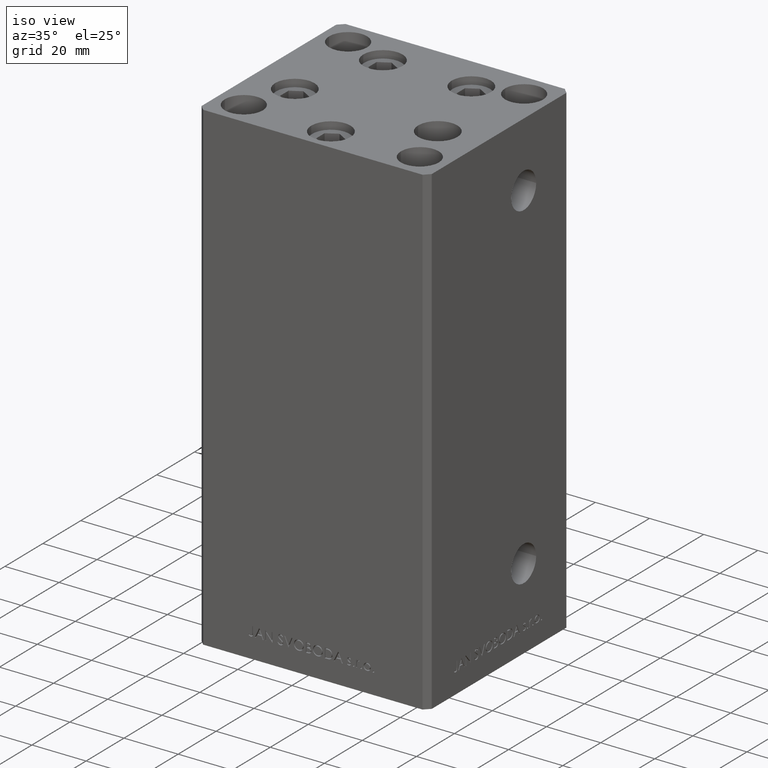
[diagram: clean part render]
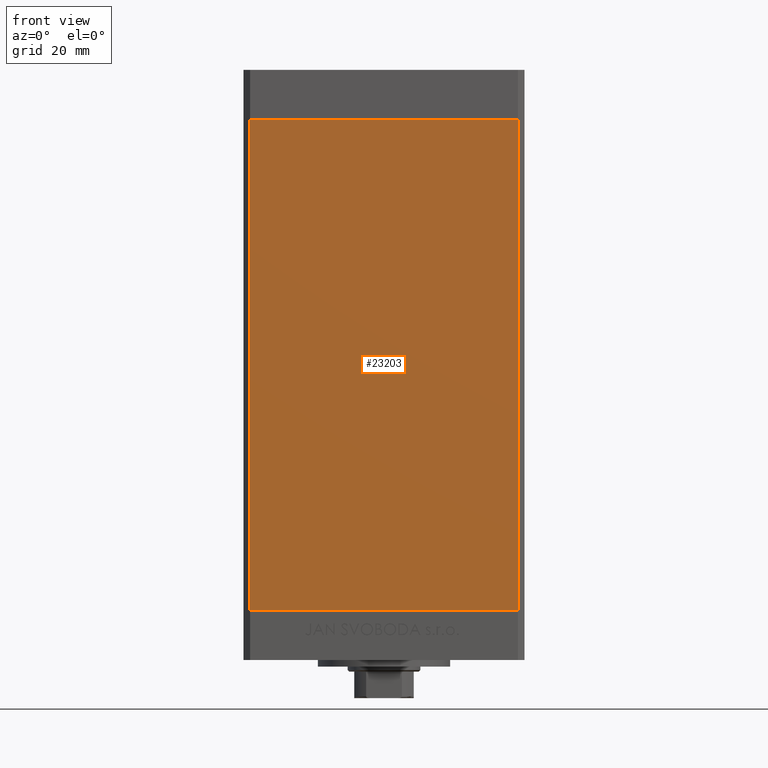
[diagram: tour spotlight — one face highlighted and labeled with its STEP entity id]
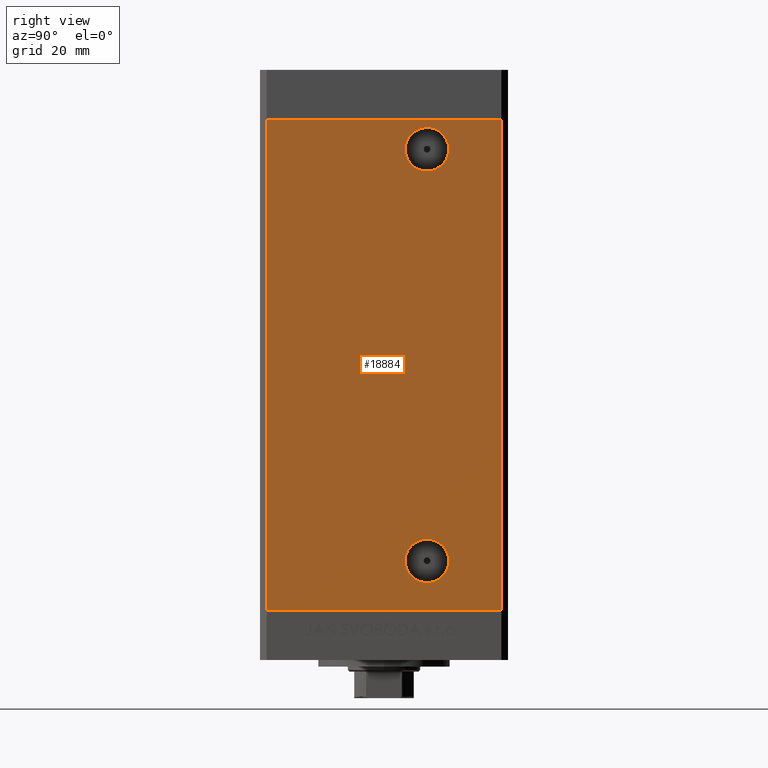
[diagram: tour spotlight — one face highlighted and labeled with its STEP entity id]
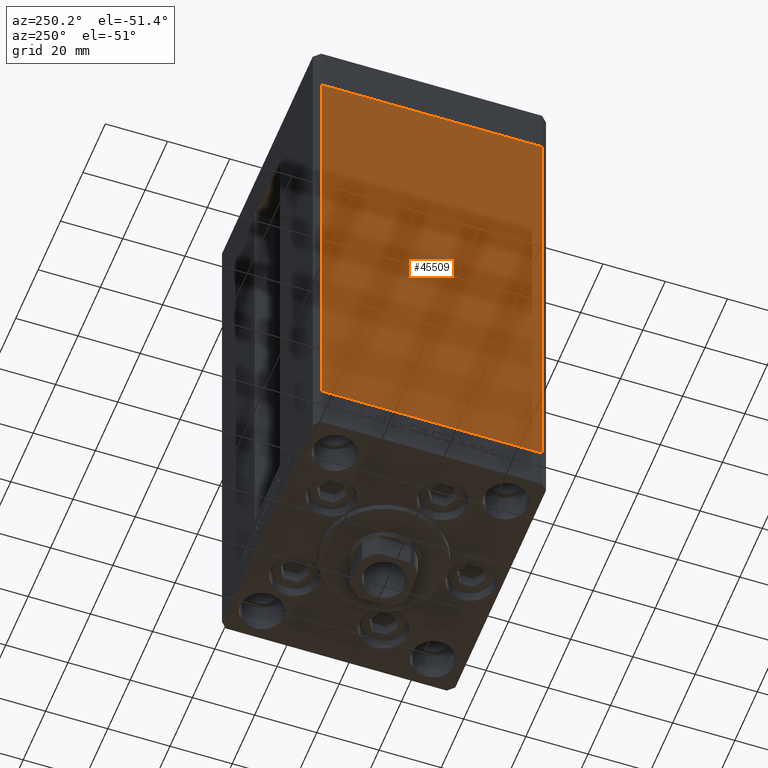
[diagram: tour spotlight — one face highlighted and labeled with its STEP entity id]
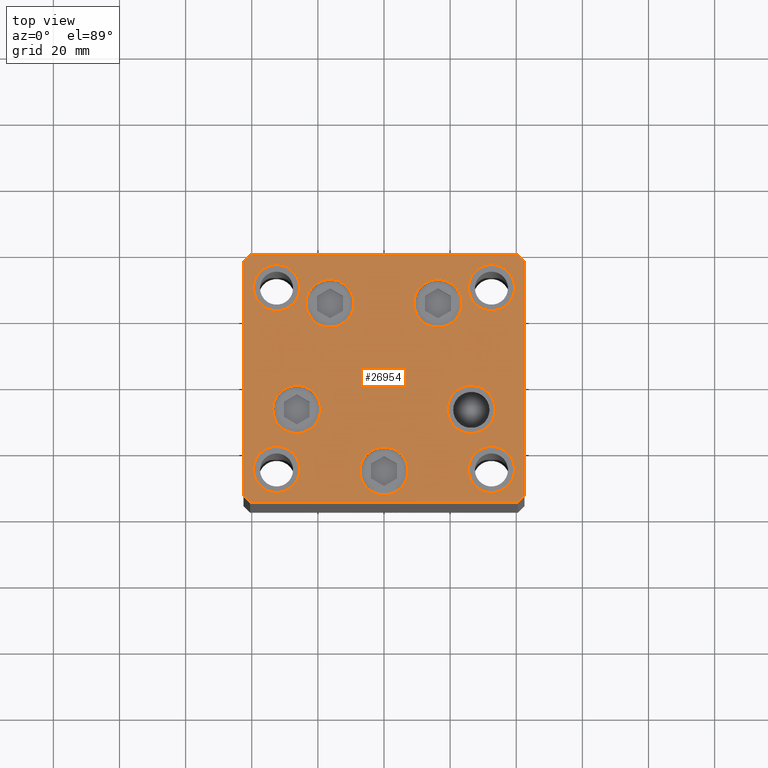
[diagram: tour spotlight — one face highlighted and labeled with its STEP entity id]
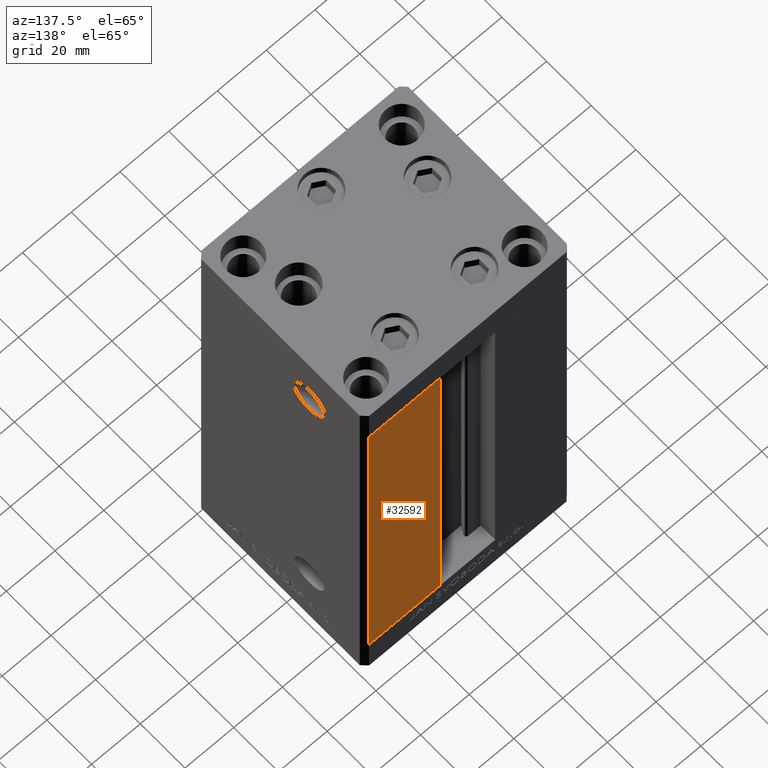
[diagram: tour spotlight — one face highlighted and labeled with its STEP entity id]
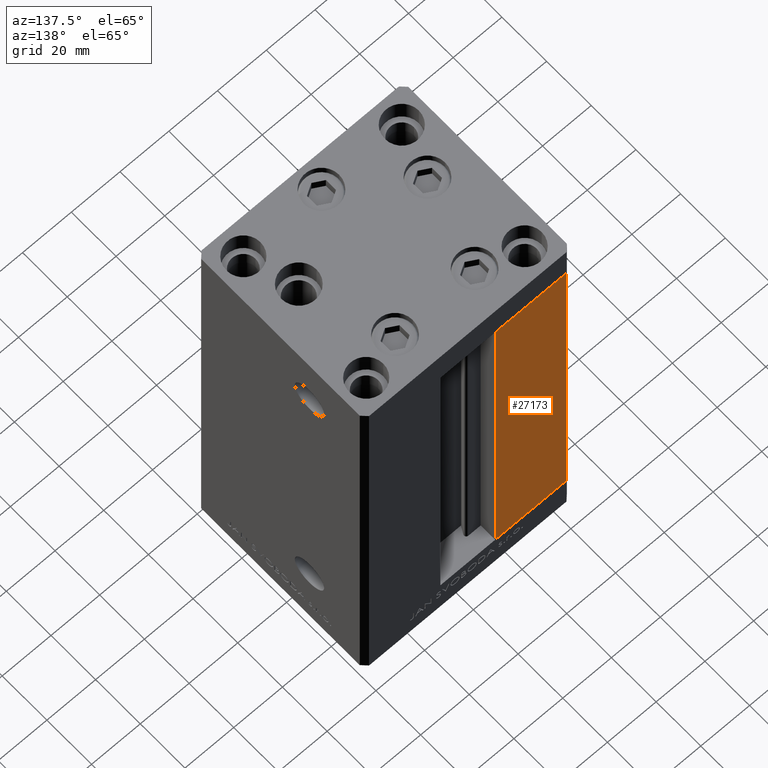
[diagram: tour spotlight — one face highlighted and labeled with its STEP entity id]
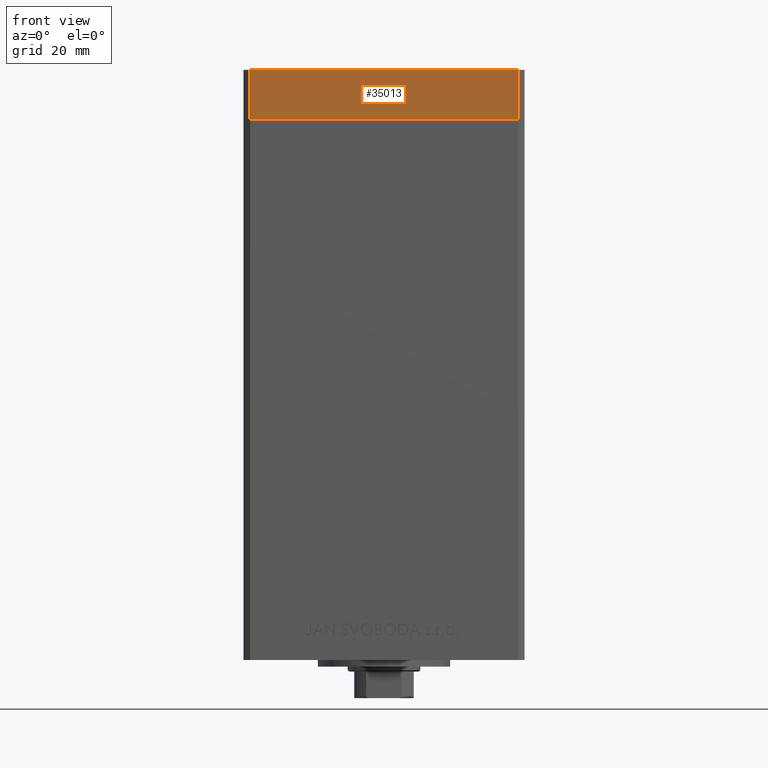
[diagram: tour spotlight — one face highlighted and labeled with its STEP entity id]
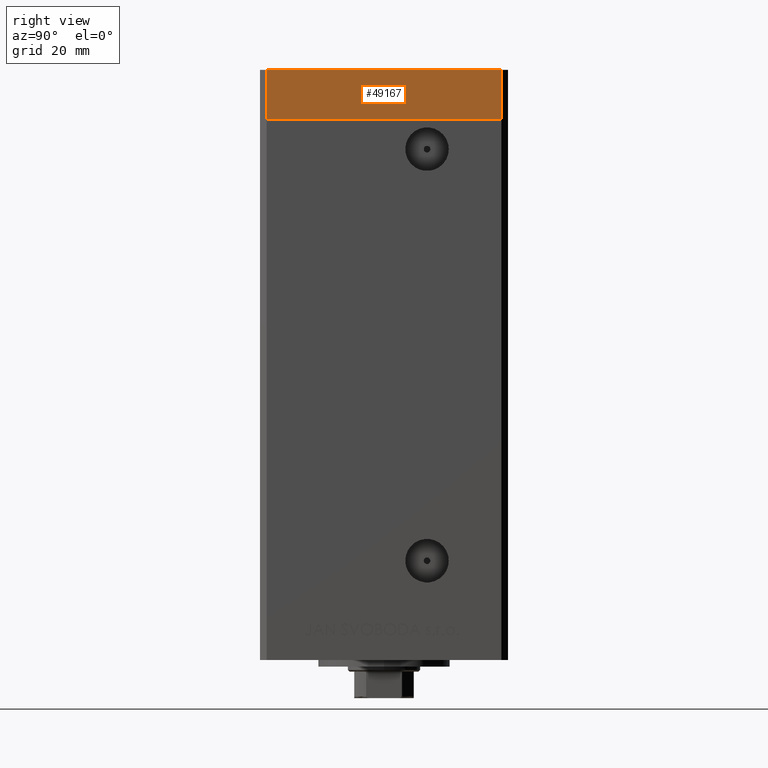
[diagram: tour spotlight — one face highlighted and labeled with its STEP entity id]
A machine part: a face-by-face anatomy tour. The part has 1171 B-rep faces; the first image is the clean iso view, then the 8 largest visible faces are spotlighted one at a time (largest first), each with its STEP entity span.

Face 1 — front view, entity #23203. In plain terms, the highlighted planar face has unit normal (0, 1, 0).
Definition (entity closure, byte-faithful):
#2121 = CARTESIAN_POINT ( 'NONE',  ( -40.49999999999998579, -37.50000000000000711, 0.000000000000000000 ) ) ;
#5513 = EDGE_CURVE ( 'NONE', #39610, #30235, #44500, .T. ) ;
#5662 = CARTESIAN_POINT ( 'NONE',  ( 40.49999999999998579, -37.50000000000000711, 148.5000000000000000 ) ) ;
#6049 = FACE_OUTER_BOUND ( 'NONE', #33575, .T. ) ;
#6086 = DIRECTION ( 'NONE',  ( 1.000000000000000000, 0.000000000000000000, 0.000000000000000000 ) ) ;
#7280 = CARTESIAN_POINT ( 'NONE',  ( -40.49999999999998579, -37.50000000000000711, 148.5000000000000000 ) ) ;
#9648 = DIRECTION ( 'NONE',  ( -0.000000000000000000, -0.000000000000000000, -1.000000000000000000 ) ) ;
#10099 = VECTOR ( 'NONE', #6086, 1000.000000000000000 ) ;
#11022 = LINE ( 'NONE', #7280, #34894 ) ;
#11401 = CARTESIAN_POINT ( 'NONE',  ( -40.49999999999998579, -37.50000000000000711, 148.5000000000000000 ) ) ;
#11536 = CARTESIAN_POINT ( 'NONE',  ( -40.49999999999998579, -37.50000000000000711, 148.5000000000000000 ) ) ;
#11631 = EDGE_CURVE ( 'NONE', #24986, #25413, #40046, .T. ) ;
#12812 = CARTESIAN_POINT ( 'NONE',  ( -40.49999999999998579, -37.50000000000000711, 0.000000000000000000 ) ) ;
#18714 = EDGE_CURVE ( 'NONE', #30235, #25413, #46932, .T. ) ;
#19259 = DIRECTION ( 'NONE',  ( -0.000000000000000000, -0.000000000000000000, -1.000000000000000000 ) ) ;
#20290 = VECTOR ( 'NONE', #9648, 1000.000000000000000 ) ;
#20597 = AXIS2_PLACEMENT_3D ( 'NONE', #47878, #21978, #25476 ) ;
#21978 = DIRECTION ( 'NONE',  ( 0.000000000000000000, 1.000000000000000000, 0.000000000000000000 ) ) ;
#23203 = ADVANCED_FACE ( 'NONE', ( #6049 ), #32459, .F. ) ;
#24986 = VERTEX_POINT ( 'NONE', #40977 ) ;
#25413 = VERTEX_POINT ( 'NONE', #40796 ) ;
#25476 = DIRECTION ( 'NONE',  ( 0.000000000000000000, -0.000000000000000000, 1.000000000000000000 ) ) ;
#26750 = EDGE_CURVE ( 'NONE', #39610, #24986, #11022, .T. ) ;
#29471 = DIRECTION ( 'NONE',  ( 1.000000000000000000, 0.000000000000000000, 0.000000000000000000 ) ) ;
#30235 = VERTEX_POINT ( 'NONE', #2121 ) ;
#32459 = PLANE ( 'NONE',  #20597 ) ;
#33575 = EDGE_LOOP ( 'NONE', ( #42021, #34798, #45183, #41530 ) ) ;
#34798 = ORIENTED_EDGE ( 'NONE', *, *, #11631, .F. ) ;
#34894 = VECTOR ( 'NONE', #29471, 1000.000000000000000 ) ;
#39610 = VERTEX_POINT ( 'NONE', #11401 ) ;
#40046 = LINE ( 'NONE', #5662, #20290 ) ;
#40796 = CARTESIAN_POINT ( 'NONE',  ( 40.49999999999998579, -37.50000000000000711, 0.000000000000000000 ) ) ;
#40977 = CARTESIAN_POINT ( 'NONE',  ( 40.49999999999998579, -37.50000000000000711, 148.5000000000000000 ) ) ;
#41530 = ORIENTED_EDGE ( 'NONE', *, *, #5513, .T. ) ;
#42021 = ORIENTED_EDGE ( 'NONE', *, *, #18714, .T. ) ;
#42426 = VECTOR ( 'NONE', #19259, 1000.000000000000000 ) ;
#44500 = LINE ( 'NONE', #11536, #42426 ) ;
#45183 = ORIENTED_EDGE ( 'NONE', *, *, #26750, .F. ) ;
#46932 = LINE ( 'NONE', #12812, #10099 ) ;
#47878 = CARTESIAN_POINT ( 'NONE',  ( -40.49999999999998579, -37.50000000000000711, 148.5000000000000000 ) ) ;

Face 2 — right view, entity #18884. In plain terms, the highlighted planar face has unit normal (1, -0, 0).
Definition (entity closure, byte-faithful):
#4 = CIRCLE ( 'NONE', #46949, 6.580000000000008065 ) ;
#3818 = EDGE_LOOP ( 'NONE', ( #45643, #15372 ) ) ;
#4358 = LINE ( 'NONE', #30765, #15298 ) ;
#4603 = LINE ( 'NONE', #16568, #42106 ) ;
#5933 = DIRECTION ( 'NONE',  ( -2.931927001650941360E-16, -1.000000000000000000, 0.000000000000000000 ) ) ;
#6117 = AXIS2_PLACEMENT_3D ( 'NONE', #15995, #12001, #23728 ) ;
#6176 = LINE ( 'NONE', #33070, #27689 ) ;
#6728 = CARTESIAN_POINT ( 'NONE',  ( 42.49999999999998579, -35.50000000000000711, 148.5000000000000000 ) ) ;
#9004 = CARTESIAN_POINT ( 'NONE',  ( 42.49999999999999289, 13.00000000000000000, 14.99999999999998579 ) ) ;
#9439 = EDGE_CURVE ( 'NONE', #11125, #24076, #46431, .T. ) ;
#9589 = CARTESIAN_POINT ( 'NONE',  ( 42.50000000000000711, 35.50000000000001421, 0.000000000000000000 ) ) ;
#11125 = VERTEX_POINT ( 'NONE', #19431 ) ;
#11884 = VERTEX_POINT ( 'NONE', #9589 ) ;
#12001 = DIRECTION ( 'NONE',  ( 1.000000000000000000, -2.931927001650941360E-16, 0.000000000000000000 ) ) ;
#12491 = VERTEX_POINT ( 'NONE', #28833 ) ;
#12742 = EDGE_CURVE ( 'NONE', #20650, #26974, #44176, .T. ) ;
#14153 = ORIENTED_EDGE ( 'NONE', *, *, #24643, .F. ) ;
#14732 = VERTEX_POINT ( 'NONE', #29198 ) ;
#15298 = VECTOR ( 'NONE', #19810, 1000.000000000000000 ) ;
#15372 = ORIENTED_EDGE ( 'NONE', *, *, #30175, .F. ) ;
#15995 = CARTESIAN_POINT ( 'NONE',  ( 42.50000000000000711, 35.50000000000001421, 148.5000000000000000 ) ) ;
#16568 = CARTESIAN_POINT ( 'NONE',  ( 42.50000000000000711, 35.50000000000001421, 148.5000000000000000 ) ) ;
#18884 = ADVANCED_FACE ( 'NONE', ( #42647, #30693, #38172 ), #45636, .T. ) ;
#19431 = CARTESIAN_POINT ( 'NONE',  ( 42.49999999999999289, 19.58000000000000540, 14.99999999999998579 ) ) ;
#19807 = DIRECTION ( 'NONE',  ( -2.931927001650941360E-16, -1.000000000000000000, 0.000000000000000000 ) ) ;
#19810 = DIRECTION ( 'NONE',  ( -0.000000000000000000, -0.000000000000000000, -1.000000000000000000 ) ) ;
#20650 = VERTEX_POINT ( 'NONE', #37463 ) ;
#21692 = DIRECTION ( 'NONE',  ( 0.000000000000000000, 1.000000000000000000, 0.000000000000000000 ) ) ;
#23123 = EDGE_LOOP ( 'NONE', ( #14153, #25851, #30000, #30575 ) ) ;
#23728 = DIRECTION ( 'NONE',  ( 2.931927001650941360E-16, 1.000000000000000000, 0.000000000000000000 ) ) ;
#24076 = VERTEX_POINT ( 'NONE', #36918 ) ;
#24214 = DIRECTION ( 'NONE',  ( 1.000000000000000000, -2.275047181608927644E-16, 0.000000000000000000 ) ) ;
#24643 = EDGE_CURVE ( 'NONE', #11884, #14732, #6176, .T. ) ;
#24891 = VECTOR ( 'NONE', #36876, 1000.000000000000000 ) ;
#25588 = EDGE_CURVE ( 'NONE', #26974, #20650, #29325, .T. ) ;
#25851 = ORIENTED_EDGE ( 'NONE', *, *, #39928, .F. ) ;
#25996 = CARTESIAN_POINT ( 'NONE',  ( 42.49999999999999289, 13.00000000000000000, 139.4999999999999716 ) ) ;
#26974 = VERTEX_POINT ( 'NONE', #42025 ) ;
#27689 = VECTOR ( 'NONE', #5933, 1000.000000000000000 ) ;
#28402 = EDGE_CURVE ( 'NONE', #40264, #12491, #4603, .T. ) ;
#28768 = CARTESIAN_POINT ( 'NONE',  ( 42.49999999999999289, 13.00000000000000000, 14.99999999999998579 ) ) ;
#28833 = CARTESIAN_POINT ( 'NONE',  ( 42.49999999999998579, -35.50000000000000711, 148.5000000000000000 ) ) ;
#29198 = CARTESIAN_POINT ( 'NONE',  ( 42.49999999999998579, -35.50000000000000711, 0.000000000000000000 ) ) ;
#29325 = CIRCLE ( 'NONE', #42834, 6.580000000000014282 ) ;
#30000 = ORIENTED_EDGE ( 'NONE', *, *, #28402, .T. ) ;
#30175 = EDGE_CURVE ( 'NONE', #24076, #11125, #4, .T. ) ;
#30575 = ORIENTED_EDGE ( 'NONE', *, *, #36663, .T. ) ;
#30693 = FACE_BOUND ( 'NONE', #47052, .T. ) ;
#30765 = CARTESIAN_POINT ( 'NONE',  ( 42.50000000000000711, 35.50000000000001421, 148.5000000000000000 ) ) ;
#31334 = AXIS2_PLACEMENT_3D ( 'NONE', #9004, #24214, #21692 ) ;
#32003 = DIRECTION ( 'NONE',  ( 0.000000000000000000, 1.000000000000000000, 0.000000000000000000 ) ) ;
#32234 = AXIS2_PLACEMENT_3D ( 'NONE', #25996, #37931, #44905 ) ;
#33070 = CARTESIAN_POINT ( 'NONE',  ( 42.50000000000000711, 35.50000000000001421, 0.000000000000000000 ) ) ;
#34282 = DIRECTION ( 'NONE',  ( 1.000000000000000000, -2.275047181608927644E-16, 0.000000000000000000 ) ) ;
#36663 = EDGE_CURVE ( 'NONE', #12491, #14732, #45558, .T. ) ;
#36876 = DIRECTION ( 'NONE',  ( -0.000000000000000000, -0.000000000000000000, -1.000000000000000000 ) ) ;
#36918 = CARTESIAN_POINT ( 'NONE',  ( 42.49999999999999289, 6.419999999999993712, 14.99999999999998579 ) ) ;
#37323 = ORIENTED_EDGE ( 'NONE', *, *, #12742, .F. ) ;
#37463 = CARTESIAN_POINT ( 'NONE',  ( 42.49999999999999289, 6.419999999999983942, 139.4999999999999716 ) ) ;
#37544 = CARTESIAN_POINT ( 'NONE',  ( 42.49999999999999289, 13.00000000000000000, 139.4999999999999716 ) ) ;
#37931 = DIRECTION ( 'NONE',  ( 1.000000000000000000, -2.275047181608927644E-16, 0.000000000000000000 ) ) ;
#38172 = FACE_OUTER_BOUND ( 'NONE', #23123, .T. ) ;
#39928 = EDGE_CURVE ( 'NONE', #40264, #11884, #4358, .T. ) ;
#40264 = VERTEX_POINT ( 'NONE', #44669 ) ;
#42025 = CARTESIAN_POINT ( 'NONE',  ( 42.49999999999999289, 19.58000000000001251, 139.4999999999999716 ) ) ;
#42106 = VECTOR ( 'NONE', #19807, 1000.000000000000000 ) ;
#42647 = FACE_BOUND ( 'NONE', #3818, .T. ) ;
#42834 = AXIS2_PLACEMENT_3D ( 'NONE', #37544, #34282, #45494 ) ;
#44176 = CIRCLE ( 'NONE', #32234, 6.580000000000014282 ) ;
#44669 = CARTESIAN_POINT ( 'NONE',  ( 42.50000000000000711, 35.50000000000001421, 148.5000000000000000 ) ) ;
#44905 = DIRECTION ( 'NONE',  ( 0.000000000000000000, 1.000000000000000000, 0.000000000000000000 ) ) ;
#45031 = ORIENTED_EDGE ( 'NONE', *, *, #25588, .F. ) ;
#45494 = DIRECTION ( 'NONE',  ( 0.000000000000000000, 1.000000000000000000, 0.000000000000000000 ) ) ;
#45558 = LINE ( 'NONE', #6728, #24891 ) ;
#45636 = PLANE ( 'NONE',  #6117 ) ;
#45643 = ORIENTED_EDGE ( 'NONE', *, *, #9439, .F. ) ;
#46431 = CIRCLE ( 'NONE', #31334, 6.580000000000008065 ) ;
#46949 = AXIS2_PLACEMENT_3D ( 'NONE', #28768, #47928, #32003 ) ;
#47052 = EDGE_LOOP ( 'NONE', ( #45031, #37323 ) ) ;
#47928 = DIRECTION ( 'NONE',  ( 1.000000000000000000, -2.275047181608927644E-16, 0.000000000000000000 ) ) ;

Face 3 — auxiliary view, entity #45509. In plain terms, the highlighted planar face has unit normal (1, 0, 0).
Definition (entity closure, byte-faithful):
#7989 = PLANE ( 'NONE',  #20990 ) ;
#8237 = DIRECTION ( 'NONE',  ( 1.000000000000000000, 2.931927001650941360E-16, -0.000000000000000000 ) ) ;
#8667 = VECTOR ( 'NONE', #20943, 1000.000000000000000 ) ;
#8822 = LINE ( 'NONE', #24774, #38577 ) ;
#10164 = VERTEX_POINT ( 'NONE', #21167 ) ;
#11235 = CARTESIAN_POINT ( 'NONE',  ( -42.49999999999998579, -35.50000000000000711, 148.5000000000000000 ) ) ;
#11482 = DIRECTION ( 'NONE',  ( -0.000000000000000000, -0.000000000000000000, -1.000000000000000000 ) ) ;
#13760 = LINE ( 'NONE', #44620, #30941 ) ;
#17142 = CARTESIAN_POINT ( 'NONE',  ( -42.50000000000000711, 35.50000000000001421, 148.5000000000000000 ) ) ;
#17886 = ORIENTED_EDGE ( 'NONE', *, *, #32888, .F. ) ;
#18738 = LINE ( 'NONE', #11235, #24783 ) ;
#20943 = DIRECTION ( 'NONE',  ( -0.000000000000000000, -0.000000000000000000, -1.000000000000000000 ) ) ;
#20990 = AXIS2_PLACEMENT_3D ( 'NONE', #34652, #8237, #38638 ) ;
#21167 = CARTESIAN_POINT ( 'NONE',  ( -42.50000000000000711, 35.50000000000001421, 0.000000000000000000 ) ) ;
#21919 = CARTESIAN_POINT ( 'NONE',  ( -42.49999999999998579, -35.50000000000000711, 148.5000000000000000 ) ) ;
#23253 = ORIENTED_EDGE ( 'NONE', *, *, #24170, .T. ) ;
#23758 = VERTEX_POINT ( 'NONE', #32999 ) ;
#23973 = ORIENTED_EDGE ( 'NONE', *, *, #24009, .F. ) ;
#24009 = EDGE_CURVE ( 'NONE', #34837, #24346, #13760, .T. ) ;
#24170 = EDGE_CURVE ( 'NONE', #34837, #10164, #31397, .T. ) ;
#24346 = VERTEX_POINT ( 'NONE', #21919 ) ;
#24774 = CARTESIAN_POINT ( 'NONE',  ( -42.50000000000000711, 35.50000000000001421, 0.000000000000000000 ) ) ;
#24783 = VECTOR ( 'NONE', #11482, 1000.000000000000000 ) ;
#25964 = DIRECTION ( 'NONE',  ( 2.931927001650941360E-16, -1.000000000000000000, 0.000000000000000000 ) ) ;
#26221 = ORIENTED_EDGE ( 'NONE', *, *, #47509, .T. ) ;
#27671 = CARTESIAN_POINT ( 'NONE',  ( -42.50000000000000711, 35.50000000000001421, 148.5000000000000000 ) ) ;
#30941 = VECTOR ( 'NONE', #25964, 1000.000000000000000 ) ;
#31397 = LINE ( 'NONE', #27671, #8667 ) ;
#32888 = EDGE_CURVE ( 'NONE', #24346, #23758, #18738, .T. ) ;
#32999 = CARTESIAN_POINT ( 'NONE',  ( -42.49999999999998579, -35.50000000000000711, 0.000000000000000000 ) ) ;
#34652 = CARTESIAN_POINT ( 'NONE',  ( -42.50000000000000711, 35.50000000000001421, 148.5000000000000000 ) ) ;
#34837 = VERTEX_POINT ( 'NONE', #17142 ) ;
#38577 = VECTOR ( 'NONE', #39958, 1000.000000000000000 ) ;
#38638 = DIRECTION ( 'NONE',  ( -2.931927001650941360E-16, 1.000000000000000000, 0.000000000000000000 ) ) ;
#39160 = EDGE_LOOP ( 'NONE', ( #26221, #17886, #23973, #23253 ) ) ;
#39958 = DIRECTION ( 'NONE',  ( 2.931927001650941360E-16, -1.000000000000000000, 0.000000000000000000 ) ) ;
#42116 = FACE_OUTER_BOUND ( 'NONE', #39160, .T. ) ;
#44620 = CARTESIAN_POINT ( 'NONE',  ( -42.50000000000000711, 35.50000000000001421, 148.5000000000000000 ) ) ;
#45509 = ADVANCED_FACE ( 'NONE', ( #42116 ), #7989, .F. ) ;
#47509 = EDGE_CURVE ( 'NONE', #10164, #23758, #8822, .T. ) ;

Face 4 — top view, entity #26954. In plain terms, the highlighted planar face has unit normal (0, 0, 1).
Definition (entity closure, byte-faithful):
#751 = EDGE_CURVE ( 'NONE', #39592, #11985, #37827, .T. ) ;
#823 = CARTESIAN_POINT ( 'NONE',  ( -33.64865316429776954, -9.333333333333337478, 0.000000000000000000 ) ) ;
#832 = DIRECTION ( 'NONE',  ( 0.000000000000000000, -0.000000000000000000, -1.000000000000000000 ) ) ;
#996 = EDGE_CURVE ( 'NONE', #38332, #22882, #35816, .T. ) ;
#1214 = DIRECTION ( 'NONE',  ( 0.000000000000000000, 0.000000000000000000, 1.000000000000000000 ) ) ;
#1339 = DIRECTION ( 'NONE',  ( 1.000000000000000000, 0.000000000000000000, 0.000000000000000000 ) ) ;
#1417 = AXIS2_PLACEMENT_3D ( 'NONE', #25407, #25897, #41323 ) ;
#1518 = AXIS2_PLACEMENT_3D ( 'NONE', #11389, #26836, #10903 ) ;
#1844 = EDGE_LOOP ( 'NONE', ( #23767, #6208 ) ) ;
#2169 = DIRECTION ( 'NONE',  ( 0.000000000000000000, 0.000000000000000000, 1.000000000000000000 ) ) ;
#2222 = DIRECTION ( 'NONE',  ( 0.000000000000000000, 0.000000000000000000, 1.000000000000000000 ) ) ;
#2289 = CARTESIAN_POINT ( 'NONE',  ( 40.49999999999991473, 37.50000000000000711, 0.000000000000000000 ) ) ;
#2456 = ORIENTED_EDGE ( 'NONE', *, *, #39711, .F. ) ;
#2947 = FACE_BOUND ( 'NONE', #3565, .T. ) ;
#3004 = CARTESIAN_POINT ( 'NONE',  ( -40.50000000000000711, 37.49999999999997868, 0.000000000000000000 ) ) ;
#3115 = AXIS2_PLACEMENT_3D ( 'NONE', #5895, #36296, #40753 ) ;
#3144 = CARTESIAN_POINT ( 'NONE',  ( -25.50000000000000355, 27.50000000000000355, 0.000000000000000000 ) ) ;
#3189 = VERTEX_POINT ( 'NONE', #42095 ) ;
#3428 = FACE_BOUND ( 'NONE', #26576, .T. ) ;
#3565 = EDGE_LOOP ( 'NONE', ( #8751, #9553 ) ) ;
#3736 = VERTEX_POINT ( 'NONE', #22509 ) ;
#3845 = ORIENTED_EDGE ( 'NONE', *, *, #751, .T. ) ;
#4274 = DIRECTION ( 'NONE',  ( 0.000000000000000000, 0.000000000000000000, 1.000000000000000000 ) ) ;
#4553 = CARTESIAN_POINT ( 'NONE',  ( -32.50000000000000000, 27.50000000000000355, 0.000000000000000000 ) ) ;
#5895 = CARTESIAN_POINT ( 'NONE',  ( -26.39865316429776954, -9.333333333333337478, 0.000000000000000000 ) ) ;
#6186 = AXIS2_PLACEMENT_3D ( 'NONE', #12254, #4274, #27458 ) ;
#6208 = ORIENTED_EDGE ( 'NONE', *, *, #14030, .T. ) ;
#6273 = ORIENTED_EDGE ( 'NONE', *, *, #36153, .T. ) ;
#6283 = CIRCLE ( 'NONE', #3115, 7.249999999999999112 ) ;
#6542 = CARTESIAN_POINT ( 'NONE',  ( -23.57291334290543006, 22.74999999999999645, 0.000000000000000000 ) ) ;
#6551 = CIRCLE ( 'NONE', #32802, 6.999999999999999112 ) ;
#6618 = CARTESIAN_POINT ( 'NONE',  ( -39.50000000000000000, 27.50000000000000355, 0.000000000000000000 ) ) ;
#6785 = CARTESIAN_POINT ( 'NONE',  ( 19.14865316429777309, -9.333333333333330373, 0.000000000000000000 ) ) ;
#6828 = CARTESIAN_POINT ( 'NONE',  ( 40.50000000000000000, -37.50000000000000711, 0.000000000000000000 ) ) ;
#7400 = AXIS2_PLACEMENT_3D ( 'NONE', #17868, #29329, #33069 ) ;
#7951 = CARTESIAN_POINT ( 'NONE',  ( 25.50000000000000355, 27.49999999999999645, 0.000000000000000000 ) ) ;
#8304 = EDGE_CURVE ( 'NONE', #9121, #3736, #26210, .T. ) ;
#8410 = EDGE_CURVE ( 'NONE', #11366, #34229, #12313, .T. ) ;
#8557 = CIRCLE ( 'NONE', #1417, 7.249999999999999112 ) ;
#8682 = DIRECTION ( 'NONE',  ( 1.000000000000000000, 0.000000000000000000, 0.000000000000000000 ) ) ;
#8751 = ORIENTED_EDGE ( 'NONE', *, *, #36229, .T. ) ;
#9121 = VERTEX_POINT ( 'NONE', #37674 ) ;
#9249 = ORIENTED_EDGE ( 'NONE', *, *, #10739, .T. ) ;
#9318 = AXIS2_PLACEMENT_3D ( 'NONE', #38063, #40826, #17905 ) ;
#9376 = CARTESIAN_POINT ( 'NONE',  ( 42.50000000000000711, -35.50000000000000000, 0.000000000000000000 ) ) ;
#9494 = DIRECTION ( 'NONE',  ( 0.000000000000000000, -0.000000000000000000, -1.000000000000000000 ) ) ;
#9553 = ORIENTED_EDGE ( 'NONE', *, *, #17030, .T. ) ;
#9558 = EDGE_CURVE ( 'NONE', #31681, #34976, #48040, .T. ) ;
#10739 = EDGE_CURVE ( 'NONE', #3189, #20175, #14654, .T. ) ;
#10903 = DIRECTION ( 'NONE',  ( 1.000000000000000000, 0.000000000000000000, 0.000000000000000000 ) ) ;
#11366 = VERTEX_POINT ( 'NONE', #14405 ) ;
#11389 = CARTESIAN_POINT ( 'NONE',  ( 0.000000000000000000, 0.000000000000000000, 0.000000000000000000 ) ) ;
#11638 = FACE_BOUND ( 'NONE', #26444, .T. ) ;
#11666 = VERTEX_POINT ( 'NONE', #3144 ) ;
#11985 = VERTEX_POINT ( 'NONE', #6828 ) ;
#12127 = EDGE_CURVE ( 'NONE', #22882, #47693, #49136, .T. ) ;
#12210 = CARTESIAN_POINT ( 'NONE',  ( -26.39865316429776954, -9.333333333333337478, 0.000000000000000000 ) ) ;
#12254 = CARTESIAN_POINT ( 'NONE',  ( 32.50000000000000000, 27.49999999999999645, 0.000000000000000000 ) ) ;
#12313 = CIRCLE ( 'NONE', #43366, 7.249999999999999112 ) ;
#12911 = CARTESIAN_POINT ( 'NONE',  ( -32.50000000000000000, -27.49999999999999645, 0.000000000000000000 ) ) ;
#12962 = VERTEX_POINT ( 'NONE', #17236 ) ;
#12966 = DIRECTION ( 'NONE',  ( 0.000000000000000000, -0.000000000000000000, -1.000000000000000000 ) ) ;
#13103 = VECTOR ( 'NONE', #29984, 1000.000000000000000 ) ;
#13141 = CIRCLE ( 'NONE', #18727, 6.999999999999999112 ) ;
#13261 = EDGE_CURVE ( 'NONE', #37925, #11666, #13141, .T. ) ;
#13339 = CARTESIAN_POINT ( 'NONE',  ( 32.50000000000000000, 27.49999999999999645, 0.000000000000000000 ) ) ;
#13730 = DIRECTION ( 'NONE',  ( 0.000000000000000000, 0.000000000000000000, 1.000000000000000000 ) ) ;
#13750 = ORIENTED_EDGE ( 'NONE', *, *, #13261, .F. ) ;
#14030 = EDGE_CURVE ( 'NONE', #34229, #11366, #16467, .T. ) ;
#14154 = EDGE_CURVE ( 'NONE', #20175, #3189, #37155, .T. ) ;
#14169 = ORIENTED_EDGE ( 'NONE', *, *, #27301, .T. ) ;
#14243 = CIRCLE ( 'NONE', #36522, 7.249999999999999112 ) ;
#14405 = CARTESIAN_POINT ( 'NONE',  ( 9.072913342905424727, 22.75000000000000000, 0.000000000000000000 ) ) ;
#14593 = CARTESIAN_POINT ( 'NONE',  ( 3.429011037612589276E-15, -28.00000000000000000, 0.000000000000000000 ) ) ;
#14654 = CIRCLE ( 'NONE', #18644, 7.250000000000000000 ) ;
#15039 = DIRECTION ( 'NONE',  ( 0.000000000000000000, 0.000000000000000000, 1.000000000000000000 ) ) ;
#15132 = FACE_BOUND ( 'NONE', #38240, .T. ) ;
#15331 = CIRCLE ( 'NONE', #28862, 6.999999999999999112 ) ;
#15843 = CIRCLE ( 'NONE', #22988, 6.999999999999999112 ) ;
#15953 = EDGE_CURVE ( 'NONE', #26290, #9121, #27570, .T. ) ;
#16290 = CARTESIAN_POINT ( 'NONE',  ( -16.32291334290543006, 22.74999999999999645, 0.000000000000000000 ) ) ;
#16411 = ORIENTED_EDGE ( 'NONE', *, *, #34445, .F. ) ;
#16467 = CIRCLE ( 'NONE', #17251, 7.249999999999999112 ) ;
#16945 = CIRCLE ( 'NONE', #7400, 7.249999999999999112 ) ;
#16949 = AXIS2_PLACEMENT_3D ( 'NONE', #32169, #13730, #44113 ) ;
#16954 = DIRECTION ( 'NONE',  ( 1.000000000000000000, 0.000000000000000000, 0.000000000000000000 ) ) ;
#17030 = EDGE_CURVE ( 'NONE', #12962, #45228, #20387, .T. ) ;
#17236 = CARTESIAN_POINT ( 'NONE',  ( -9.072913342905431833, 22.74999999999999645, 0.000000000000000000 ) ) ;
#17251 = AXIS2_PLACEMENT_3D ( 'NONE', #31634, #38357, #39112 ) ;
#17522 = EDGE_CURVE ( 'NONE', #3736, #38332, #36415, .T. ) ;
#17752 = CIRCLE ( 'NONE', #16949, 6.999999999999999112 ) ;
#17789 = AXIS2_PLACEMENT_3D ( 'NONE', #31616, #2222, #46800 ) ;
#17853 = CARTESIAN_POINT ( 'NONE',  ( -40.50000000000000711, 37.49999999999997868, 0.000000000000000000 ) ) ;
#17868 = CARTESIAN_POINT ( 'NONE',  ( 26.39865316429776954, -9.333333333333330373, 0.000000000000000000 ) ) ;
#17905 = DIRECTION ( 'NONE',  ( 1.000000000000000000, 0.000000000000000000, 0.000000000000000000 ) ) ;
#18600 = CARTESIAN_POINT ( 'NONE',  ( -39.50000000000000000, -27.49999999999999645, 0.000000000000000000 ) ) ;
#18644 = AXIS2_PLACEMENT_3D ( 'NONE', #14593, #25822, #29789 ) ;
#18727 = AXIS2_PLACEMENT_3D ( 'NONE', #22075, #2169, #37026 ) ;
#18897 = DIRECTION ( 'NONE',  ( 1.000000000000000000, 1.713307136767217096E-16, 0.000000000000000000 ) ) ;
#19214 = ORIENTED_EDGE ( 'NONE', *, *, #37318, .F. ) ;
#19625 = AXIS2_PLACEMENT_3D ( 'NONE', #21882, #48506, #30316 ) ;
#19969 = VERTEX_POINT ( 'NONE', #29677 ) ;
#20175 = VERTEX_POINT ( 'NONE', #47075 ) ;
#20245 = EDGE_CURVE ( 'NONE', #27541, #44583, #8557, .T. ) ;
#20387 = CIRCLE ( 'NONE', #19625, 7.249999999999999112 ) ;
#20830 = ORIENTED_EDGE ( 'NONE', *, *, #23821, .F. ) ;
#21031 = EDGE_CURVE ( 'NONE', #47575, #36856, #48339, .T. ) ;
#21785 = EDGE_LOOP ( 'NONE', ( #24667, #14169 ) ) ;
#21882 = CARTESIAN_POINT ( 'NONE',  ( -16.32291334290543006, 22.74999999999999645, 0.000000000000000000 ) ) ;
#22075 = CARTESIAN_POINT ( 'NONE',  ( -32.50000000000000000, 27.50000000000000355, 0.000000000000000000 ) ) ;
#22509 = CARTESIAN_POINT ( 'NONE',  ( 40.49999999999991473, 37.50000000000000711, 0.000000000000000000 ) ) ;
#22779 = DIRECTION ( 'NONE',  ( 0.7071067811865474617, 0.7071067811865474617, 0.000000000000000000 ) ) ;
#22882 = VERTEX_POINT ( 'NONE', #24562 ) ;
#22988 = AXIS2_PLACEMENT_3D ( 'NONE', #4553, #15039, #34948 ) ;
#23543 = ORIENTED_EDGE ( 'NONE', *, *, #15953, .T. ) ;
#23767 = ORIENTED_EDGE ( 'NONE', *, *, #8410, .T. ) ;
#23821 = EDGE_CURVE ( 'NONE', #11666, #37925, #15843, .T. ) ;
#23891 = EDGE_LOOP ( 'NONE', ( #38558, #27571 ) ) ;
#24230 = EDGE_CURVE ( 'NONE', #35539, #19969, #14243, .T. ) ;
#24314 = DIRECTION ( 'NONE',  ( 0.000000000000000000, 0.000000000000000000, 1.000000000000000000 ) ) ;
#24397 = CARTESIAN_POINT ( 'NONE',  ( 39.50000000000000000, -27.49999999999999645, 0.000000000000000000 ) ) ;
#24516 = EDGE_CURVE ( 'NONE', #47693, #39592, #27861, .T. ) ;
#24561 = DIRECTION ( 'NONE',  ( 1.000000000000000000, 0.000000000000000000, 0.000000000000000000 ) ) ;
#24562 = CARTESIAN_POINT ( 'NONE',  ( -42.50000000000000711, 35.49999999999997158, 0.000000000000000000 ) ) ;
#24590 = DIRECTION ( 'NONE',  ( -1.172770800660376741E-15, 1.000000000000000000, 0.000000000000000000 ) ) ;
#24667 = ORIENTED_EDGE ( 'NONE', *, *, #24230, .T. ) ;
#24823 = AXIS2_PLACEMENT_3D ( 'NONE', #13339, #24314, #24561 ) ;
#24834 = CARTESIAN_POINT ( 'NONE',  ( 42.50000000000000711, -35.50000000000000000, 0.000000000000000000 ) ) ;
#24860 = ORIENTED_EDGE ( 'NONE', *, *, #21031, .F. ) ;
#25359 = VERTEX_POINT ( 'NONE', #24397 ) ;
#25407 = CARTESIAN_POINT ( 'NONE',  ( 26.39865316429776954, -9.333333333333330373, 0.000000000000000000 ) ) ;
#25822 = DIRECTION ( 'NONE',  ( 0.000000000000000000, -0.000000000000000000, -1.000000000000000000 ) ) ;
#25874 = FACE_BOUND ( 'NONE', #1844, .T. ) ;
#25897 = DIRECTION ( 'NONE',  ( 0.000000000000000000, -0.000000000000000000, -1.000000000000000000 ) ) ;
#26114 = FACE_BOUND ( 'NONE', #33748, .T. ) ;
#26210 = LINE ( 'NONE', #41399, #29810 ) ;
#26290 = VERTEX_POINT ( 'NONE', #24834 ) ;
#26444 = EDGE_LOOP ( 'NONE', ( #39012, #33016 ) ) ;
#26512 = LINE ( 'NONE', #41701, #28036 ) ;
#26576 = EDGE_LOOP ( 'NONE', ( #2456, #19214 ) ) ;
#26732 = CARTESIAN_POINT ( 'NONE',  ( -42.50000000000000711, 35.49999999999997158, 0.000000000000000000 ) ) ;
#26836 = DIRECTION ( 'NONE',  ( -0.000000000000000000, 0.000000000000000000, 1.000000000000000000 ) ) ;
#26850 = CARTESIAN_POINT ( 'NONE',  ( -40.49999999999999289, -37.50000000000002132, 0.000000000000000000 ) ) ;
#26954 = ADVANCED_FACE ( 'NONE', ( #2947, #25874, #32370, #47550, #34062, #3428, #11638, #26114, #15132, #30813 ), #34555, .T. ) ;
#27301 = EDGE_CURVE ( 'NONE', #19969, #35539, #6283, .T. ) ;
#27458 = DIRECTION ( 'NONE',  ( 1.000000000000000000, 0.000000000000000000, 0.000000000000000000 ) ) ;
#27541 = VERTEX_POINT ( 'NONE', #44185 ) ;
#27570 = LINE ( 'NONE', #9376, #39479 ) ;
#27571 = ORIENTED_EDGE ( 'NONE', *, *, #20245, .T. ) ;
#27858 = ORIENTED_EDGE ( 'NONE', *, *, #996, .T. ) ;
#27861 = LINE ( 'NONE', #42556, #49141 ) ;
#28036 = VECTOR ( 'NONE', #22779, 1000.000000000000114 ) ;
#28387 = CARTESIAN_POINT ( 'NONE',  ( -42.50000000000000000, -35.50000000000000711, 0.000000000000000000 ) ) ;
#28689 = DIRECTION ( 'NONE',  ( -1.000000000000000000, -3.426614273534436165E-16, 0.000000000000000000 ) ) ;
#28797 = CIRCLE ( 'NONE', #24823, 6.999999999999999112 ) ;
#28852 = ORIENTED_EDGE ( 'NONE', *, *, #24516, .T. ) ;
#28862 = AXIS2_PLACEMENT_3D ( 'NONE', #12911, #1214, #8682 ) ;
#29329 = DIRECTION ( 'NONE',  ( 0.000000000000000000, -0.000000000000000000, -1.000000000000000000 ) ) ;
#29603 = CARTESIAN_POINT ( 'NONE',  ( -40.49999999999999289, -37.50000000000002132, 0.000000000000000000 ) ) ;
#29677 = CARTESIAN_POINT ( 'NONE',  ( -19.14865316429777309, -9.333333333333335702, 0.000000000000000000 ) ) ;
#29789 = DIRECTION ( 'NONE',  ( 1.000000000000000000, 0.000000000000000000, 0.000000000000000000 ) ) ;
#29810 = VECTOR ( 'NONE', #40666, 1000.000000000000114 ) ;
#29984 = DIRECTION ( 'NONE',  ( 9.773090005503140331E-17, -1.000000000000000000, 0.000000000000000000 ) ) ;
#30316 = DIRECTION ( 'NONE',  ( 1.000000000000000000, 0.000000000000000000, 0.000000000000000000 ) ) ;
#30742 = VECTOR ( 'NONE', #28689, 1000.000000000000000 ) ;
#30813 = FACE_OUTER_BOUND ( 'NONE', #39902, .T. ) ;
#31616 = CARTESIAN_POINT ( 'NONE',  ( -32.50000000000000000, -27.49999999999999645, 0.000000000000000000 ) ) ;
#31634 = CARTESIAN_POINT ( 'NONE',  ( 16.32291334290542295, 22.75000000000000000, 0.000000000000000000 ) ) ;
#31681 = VERTEX_POINT ( 'NONE', #34813 ) ;
#31842 = DIRECTION ( 'NONE',  ( 0.7071067811865463515, -0.7071067811865487940, 0.000000000000000000 ) ) ;
#32103 = CARTESIAN_POINT ( 'NONE',  ( 23.57291334290542295, 22.75000000000000000, 0.000000000000000000 ) ) ;
#32169 = CARTESIAN_POINT ( 'NONE',  ( 32.50000000000000000, -27.49999999999999645, 0.000000000000000000 ) ) ;
#32370 = FACE_BOUND ( 'NONE', #23891, .T. ) ;
#32802 = AXIS2_PLACEMENT_3D ( 'NONE', #34818, #35568, #46509 ) ;
#33016 = ORIENTED_EDGE ( 'NONE', *, *, #40634, .F. ) ;
#33069 = DIRECTION ( 'NONE',  ( 1.000000000000000000, 0.000000000000000000, 0.000000000000000000 ) ) ;
#33748 = EDGE_LOOP ( 'NONE', ( #20830, #13750 ) ) ;
#34062 = FACE_BOUND ( 'NONE', #21785, .T. ) ;
#34229 = VERTEX_POINT ( 'NONE', #32103 ) ;
#34347 = CARTESIAN_POINT ( 'NONE',  ( 39.50000000000000000, 27.49999999999999645, 0.000000000000000000 ) ) ;
#34445 = EDGE_CURVE ( 'NONE', #36856, #47575, #28797, .T. ) ;
#34555 = PLANE ( 'NONE',  #1518 ) ;
#34813 = CARTESIAN_POINT ( 'NONE',  ( -25.50000000000000355, -27.49999999999999645, 0.000000000000000000 ) ) ;
#34818 = CARTESIAN_POINT ( 'NONE',  ( 32.50000000000000000, -27.49999999999999645, 0.000000000000000000 ) ) ;
#34884 = ORIENTED_EDGE ( 'NONE', *, *, #17522, .T. ) ;
#34948 = DIRECTION ( 'NONE',  ( 1.000000000000000000, 0.000000000000000000, 0.000000000000000000 ) ) ;
#34976 = VERTEX_POINT ( 'NONE', #18600 ) ;
#35539 = VERTEX_POINT ( 'NONE', #823 ) ;
#35568 = DIRECTION ( 'NONE',  ( 0.000000000000000000, 0.000000000000000000, 1.000000000000000000 ) ) ;
#35816 = LINE ( 'NONE', #17853, #41513 ) ;
#36149 = CARTESIAN_POINT ( 'NONE',  ( 16.32291334290542295, 22.75000000000000000, 0.000000000000000000 ) ) ;
#36153 = EDGE_CURVE ( 'NONE', #11985, #26290, #26512, .T. ) ;
#36229 = EDGE_CURVE ( 'NONE', #45228, #12962, #43968, .T. ) ;
#36296 = DIRECTION ( 'NONE',  ( 0.000000000000000000, -0.000000000000000000, -1.000000000000000000 ) ) ;
#36415 = LINE ( 'NONE', #2289, #30742 ) ;
#36522 = AXIS2_PLACEMENT_3D ( 'NONE', #12210, #12966, #16954 ) ;
#36856 = VERTEX_POINT ( 'NONE', #34347 ) ;
#37026 = DIRECTION ( 'NONE',  ( 1.000000000000000000, 0.000000000000000000, 0.000000000000000000 ) ) ;
#37155 = CIRCLE ( 'NONE', #9318, 7.250000000000000000 ) ;
#37318 = EDGE_CURVE ( 'NONE', #43649, #25359, #17752, .T. ) ;
#37674 = CARTESIAN_POINT ( 'NONE',  ( 42.49999999999992895, 35.50000000000000000, 0.000000000000000000 ) ) ;
#37827 = LINE ( 'NONE', #26850, #39927 ) ;
#37925 = VERTEX_POINT ( 'NONE', #6618 ) ;
#38063 = CARTESIAN_POINT ( 'NONE',  ( 3.429011037612589276E-15, -28.00000000000000000, 0.000000000000000000 ) ) ;
#38240 = EDGE_LOOP ( 'NONE', ( #16411, #24860 ) ) ;
#38332 = VERTEX_POINT ( 'NONE', #3004 ) ;
#38357 = DIRECTION ( 'NONE',  ( 0.000000000000000000, -0.000000000000000000, -1.000000000000000000 ) ) ;
#38558 = ORIENTED_EDGE ( 'NONE', *, *, #40715, .T. ) ;
#38781 = ORIENTED_EDGE ( 'NONE', *, *, #8304, .T. ) ;
#39012 = ORIENTED_EDGE ( 'NONE', *, *, #9558, .F. ) ;
#39112 = DIRECTION ( 'NONE',  ( 1.000000000000000000, 0.000000000000000000, 0.000000000000000000 ) ) ;
#39479 = VECTOR ( 'NONE', #24590, 1000.000000000000000 ) ;
#39592 = VERTEX_POINT ( 'NONE', #29603 ) ;
#39711 = EDGE_CURVE ( 'NONE', #25359, #43649, #6551, .T. ) ;
#39881 = DIRECTION ( 'NONE',  ( 1.000000000000000000, 0.000000000000000000, 0.000000000000000000 ) ) ;
#39902 = EDGE_LOOP ( 'NONE', ( #28852, #3845, #6273, #23543, #38781, #34884, #27858, #45353 ) ) ;
#39927 = VECTOR ( 'NONE', #18897, 1000.000000000000000 ) ;
#40634 = EDGE_CURVE ( 'NONE', #34976, #31681, #15331, .T. ) ;
#40666 = DIRECTION ( 'NONE',  ( -0.7071067811865474617, 0.7071067811865474617, 0.000000000000000000 ) ) ;
#40715 = EDGE_CURVE ( 'NONE', #44583, #27541, #16945, .T. ) ;
#40753 = DIRECTION ( 'NONE',  ( 1.000000000000000000, 0.000000000000000000, 0.000000000000000000 ) ) ;
#40826 = DIRECTION ( 'NONE',  ( 0.000000000000000000, -0.000000000000000000, -1.000000000000000000 ) ) ;
#41323 = DIRECTION ( 'NONE',  ( 1.000000000000000000, 0.000000000000000000, 0.000000000000000000 ) ) ;
#41399 = CARTESIAN_POINT ( 'NONE',  ( 42.49999999999992895, 35.50000000000000000, 0.000000000000000000 ) ) ;
#41513 = VECTOR ( 'NONE', #44261, 1000.000000000000000 ) ;
#41701 = CARTESIAN_POINT ( 'NONE',  ( 40.50000000000000000, -37.50000000000000711, 0.000000000000000000 ) ) ;
#42095 = CARTESIAN_POINT ( 'NONE',  ( 7.250000000000003553, -28.00000000000000000, 0.000000000000000000 ) ) ;
#42345 = AXIS2_PLACEMENT_3D ( 'NONE', #16290, #832, #1339 ) ;
#42556 = CARTESIAN_POINT ( 'NONE',  ( -42.50000000000000000, -35.50000000000000711, 0.000000000000000000 ) ) ;
#43366 = AXIS2_PLACEMENT_3D ( 'NONE', #36149, #9494, #39881 ) ;
#43649 = VERTEX_POINT ( 'NONE', #47145 ) ;
#43968 = CIRCLE ( 'NONE', #42345, 7.249999999999999112 ) ;
#44113 = DIRECTION ( 'NONE',  ( 1.000000000000000000, 0.000000000000000000, 0.000000000000000000 ) ) ;
#44185 = CARTESIAN_POINT ( 'NONE',  ( 33.64865316429776954, -9.333333333333328596, 0.000000000000000000 ) ) ;
#44261 = DIRECTION ( 'NONE',  ( -0.7071067811865463515, -0.7071067811865487940, 0.000000000000000000 ) ) ;
#44583 = VERTEX_POINT ( 'NONE', #6785 ) ;
#44828 = ORIENTED_EDGE ( 'NONE', *, *, #14154, .T. ) ;
#45228 = VERTEX_POINT ( 'NONE', #6542 ) ;
#45353 = ORIENTED_EDGE ( 'NONE', *, *, #12127, .T. ) ;
#46509 = DIRECTION ( 'NONE',  ( 1.000000000000000000, 0.000000000000000000, 0.000000000000000000 ) ) ;
#46800 = DIRECTION ( 'NONE',  ( 1.000000000000000000, 0.000000000000000000, 0.000000000000000000 ) ) ;
#47075 = CARTESIAN_POINT ( 'NONE',  ( -7.249999999999997335, -28.00000000000000000, 0.000000000000000000 ) ) ;
#47145 = CARTESIAN_POINT ( 'NONE',  ( 25.50000000000000355, -27.49999999999999645, 0.000000000000000000 ) ) ;
#47550 = FACE_BOUND ( 'NONE', #47558, .T. ) ;
#47558 = EDGE_LOOP ( 'NONE', ( #44828, #9249 ) ) ;
#47575 = VERTEX_POINT ( 'NONE', #7951 ) ;
#47693 = VERTEX_POINT ( 'NONE', #28387 ) ;
#48040 = CIRCLE ( 'NONE', #17789, 6.999999999999999112 ) ;
#48339 = CIRCLE ( 'NONE', #6186, 6.999999999999999112 ) ;
#48506 = DIRECTION ( 'NONE',  ( 0.000000000000000000, -0.000000000000000000, -1.000000000000000000 ) ) ;
#49136 = LINE ( 'NONE', #26732, #13103 ) ;
#49141 = VECTOR ( 'NONE', #31842, 1000.000000000000000 ) ;

Face 5 — auxiliary view, entity #32592. In plain terms, the highlighted planar face has unit normal (-0, -1, 0).
Definition (entity closure, byte-faithful):
#960 = VERTEX_POINT ( 'NONE', #36788 ) ;
#2967 = CARTESIAN_POINT ( 'NONE',  ( -11.25000000000000000, 37.50000000000000000, 148.5000000000000000 ) ) ;
#3833 = DIRECTION ( 'NONE',  ( -2.372271420139223331E-16, -1.000000000000000000, 0.000000000000000000 ) ) ;
#7599 = VECTOR ( 'NONE', #26855, 1000.000000000000000 ) ;
#8330 = VECTOR ( 'NONE', #36340, 1000.000000000000000 ) ;
#8866 = EDGE_CURVE ( 'NONE', #26832, #960, #21149, .T. ) ;
#10387 = EDGE_CURVE ( 'NONE', #27715, #26832, #44309, .T. ) ;
#11062 = PLANE ( 'NONE',  #34281 ) ;
#11816 = LINE ( 'NONE', #15568, #17807 ) ;
#13441 = EDGE_LOOP ( 'NONE', ( #25204, #30717, #30221, #24153 ) ) ;
#15098 = EDGE_CURVE ( 'NONE', #24772, #27715, #37099, .T. ) ;
#15568 = CARTESIAN_POINT ( 'NONE',  ( 11.25000000000000000, 37.50000000000000000, 0.000000000000000000 ) ) ;
#16426 = CARTESIAN_POINT ( 'NONE',  ( -11.25000000000000000, 37.50000000000000000, 0.000000000000000000 ) ) ;
#16593 = CARTESIAN_POINT ( 'NONE',  ( 11.24999999999999289, 37.50000000000000000, 148.5000000000000000 ) ) ;
#17807 = VECTOR ( 'NONE', #30507, 1000.000000000000000 ) ;
#21149 = LINE ( 'NONE', #16426, #8330 ) ;
#24153 = ORIENTED_EDGE ( 'NONE', *, *, #10387, .T. ) ;
#24772 = VERTEX_POINT ( 'NONE', #16593 ) ;
#25204 = ORIENTED_EDGE ( 'NONE', *, *, #8866, .T. ) ;
#26232 = CARTESIAN_POINT ( 'NONE',  ( 40.50000000000000000, 37.50000000000000711, 148.5000000000000000 ) ) ;
#26753 = DIRECTION ( 'NONE',  ( 1.000000000000000000, -2.372271420139223331E-16, 0.000000000000000000 ) ) ;
#26832 = VERTEX_POINT ( 'NONE', #47056 ) ;
#26855 = DIRECTION ( 'NONE',  ( 1.000000000000000000, 0.000000000000000000, 0.000000000000000000 ) ) ;
#27388 = VECTOR ( 'NONE', #41305, 1000.000000000000000 ) ;
#27715 = VERTEX_POINT ( 'NONE', #26232 ) ;
#29597 = CARTESIAN_POINT ( 'NONE',  ( 40.50000000000000000, 37.50000000000000711, 148.5000000000000000 ) ) ;
#30221 = ORIENTED_EDGE ( 'NONE', *, *, #15098, .T. ) ;
#30507 = DIRECTION ( 'NONE',  ( -0.000000000000000000, -0.000000000000000000, 1.000000000000000000 ) ) ;
#30717 = ORIENTED_EDGE ( 'NONE', *, *, #48179, .T. ) ;
#32592 = ADVANCED_FACE ( 'NONE', ( #42178 ), #11062, .F. ) ;
#34281 = AXIS2_PLACEMENT_3D ( 'NONE', #37971, #3833, #26753 ) ;
#36340 = DIRECTION ( 'NONE',  ( -1.000000000000000000, 2.372271420139223331E-16, 0.000000000000000000 ) ) ;
#36788 = CARTESIAN_POINT ( 'NONE',  ( 11.25000000000000000, 37.50000000000000000, 0.000000000000000000 ) ) ;
#37099 = LINE ( 'NONE', #2967, #7599 ) ;
#37971 = CARTESIAN_POINT ( 'NONE',  ( -11.25000000000000000, 37.50000000000000000, 148.5000000000000000 ) ) ;
#41305 = DIRECTION ( 'NONE',  ( -0.000000000000000000, -0.000000000000000000, -1.000000000000000000 ) ) ;
#42178 = FACE_OUTER_BOUND ( 'NONE', #13441, .T. ) ;
#44309 = LINE ( 'NONE', #29597, #27388 ) ;
#47056 = CARTESIAN_POINT ( 'NONE',  ( 40.50000000000000000, 37.50000000000000711, 0.000000000000000000 ) ) ;
#48179 = EDGE_CURVE ( 'NONE', #960, #24772, #11816, .T. ) ;

Face 6 — auxiliary view, entity #27173. In plain terms, the highlighted planar face has unit normal (-0, -1, 0).
Definition (entity closure, byte-faithful):
#6231 = CARTESIAN_POINT ( 'NONE',  ( -11.25000000000000000, 37.50000000000000000, 0.000000000000000000 ) ) ;
#7399 = DIRECTION ( 'NONE',  ( 1.000000000000000000, 0.000000000000000000, 0.000000000000000000 ) ) ;
#8893 = DIRECTION ( 'NONE',  ( -2.372271420139223331E-16, -1.000000000000000000, 0.000000000000000000 ) ) ;
#12066 = EDGE_CURVE ( 'NONE', #40397, #36411, #22029, .T. ) ;
#12124 = DIRECTION ( 'NONE',  ( 1.000000000000000000, -2.372271420139223331E-16, 0.000000000000000000 ) ) ;
#12539 = CARTESIAN_POINT ( 'NONE',  ( -11.25000000000000000, 37.50000000000000000, 0.000000000000000000 ) ) ;
#12685 = VERTEX_POINT ( 'NONE', #26468 ) ;
#14836 = CARTESIAN_POINT ( 'NONE',  ( -40.50000000000000000, 37.50000000000000711, 148.5000000000000000 ) ) ;
#16278 = DIRECTION ( 'NONE',  ( -0.000000000000000000, -0.000000000000000000, 1.000000000000000000 ) ) ;
#17421 = ORIENTED_EDGE ( 'NONE', *, *, #26459, .F. ) ;
#21036 = ORIENTED_EDGE ( 'NONE', *, *, #48831, .F. ) ;
#21208 = ORIENTED_EDGE ( 'NONE', *, *, #12066, .T. ) ;
#22029 = LINE ( 'NONE', #33465, #28220 ) ;
#22946 = VECTOR ( 'NONE', #30023, 1000.000000000000000 ) ;
#25857 = VECTOR ( 'NONE', #7399, 1000.000000000000000 ) ;
#26459 = EDGE_CURVE ( 'NONE', #12685, #36411, #30503, .T. ) ;
#26468 = CARTESIAN_POINT ( 'NONE',  ( -40.50000000000000000, 37.50000000000000711, 148.5000000000000000 ) ) ;
#27173 = ADVANCED_FACE ( 'NONE', ( #28071 ), #27825, .F. ) ;
#27825 = PLANE ( 'NONE',  #30132 ) ;
#28071 = FACE_OUTER_BOUND ( 'NONE', #46309, .T. ) ;
#28220 = VECTOR ( 'NONE', #36727, 1000.000000000000000 ) ;
#28665 = CARTESIAN_POINT ( 'NONE',  ( -11.25000000000000000, 37.50000000000000000, 148.5000000000000000 ) ) ;
#30023 = DIRECTION ( 'NONE',  ( -0.000000000000000000, -0.000000000000000000, -1.000000000000000000 ) ) ;
#30132 = AXIS2_PLACEMENT_3D ( 'NONE', #39541, #8893, #12124 ) ;
#30503 = LINE ( 'NONE', #14836, #22946 ) ;
#30529 = VECTOR ( 'NONE', #16278, 1000.000000000000000 ) ;
#33130 = VERTEX_POINT ( 'NONE', #28665 ) ;
#33465 = CARTESIAN_POINT ( 'NONE',  ( -11.25000000000000000, 37.50000000000000000, 0.000000000000000000 ) ) ;
#36411 = VERTEX_POINT ( 'NONE', #41400 ) ;
#36727 = DIRECTION ( 'NONE',  ( -1.000000000000000000, 2.372271420139223331E-16, 0.000000000000000000 ) ) ;
#38697 = LINE ( 'NONE', #12539, #30529 ) ;
#39541 = CARTESIAN_POINT ( 'NONE',  ( -11.25000000000000000, 37.50000000000000000, 148.5000000000000000 ) ) ;
#40397 = VERTEX_POINT ( 'NONE', #6231 ) ;
#41400 = CARTESIAN_POINT ( 'NONE',  ( -40.50000000000000000, 37.50000000000000711, 0.000000000000000000 ) ) ;
#41528 = CARTESIAN_POINT ( 'NONE',  ( -11.25000000000000000, 37.50000000000000000, 148.5000000000000000 ) ) ;
#42322 = ORIENTED_EDGE ( 'NONE', *, *, #42424, .T. ) ;
#42424 = EDGE_CURVE ( 'NONE', #12685, #33130, #48990, .T. ) ;
#46309 = EDGE_LOOP ( 'NONE', ( #42322, #21036, #21208, #17421 ) ) ;
#48831 = EDGE_CURVE ( 'NONE', #40397, #33130, #38697, .T. ) ;
#48990 = LINE ( 'NONE', #41528, #25857 ) ;

Face 7 — front view, entity #35013. In plain terms, the highlighted planar face has unit normal (0, -1, 0).
Definition (entity closure, byte-faithful):
#751 = EDGE_CURVE ( 'NONE', #39592, #11985, #37827, .T. ) ;
#827 = VERTEX_POINT ( 'NONE', #41555 ) ;
#1012 = EDGE_CURVE ( 'NONE', #827, #11985, #21597, .T. ) ;
#2254 = CARTESIAN_POINT ( 'NONE',  ( -40.49999999999999289, -37.50000000000002132, -15.00000000000000000 ) ) ;
#5670 = CARTESIAN_POINT ( 'NONE',  ( -40.49999999999999289, -37.50000000000002132, -15.00000000000000000 ) ) ;
#5840 = EDGE_CURVE ( 'NONE', #22538, #827, #36383, .T. ) ;
#6162 = ORIENTED_EDGE ( 'NONE', *, *, #16545, .F. ) ;
#6828 = CARTESIAN_POINT ( 'NONE',  ( 40.50000000000000000, -37.50000000000000711, 0.000000000000000000 ) ) ;
#7625 = DIRECTION ( 'NONE',  ( 1.000000000000000000, 1.713307136767217096E-16, 0.000000000000000000 ) ) ;
#9409 = DIRECTION ( 'NONE',  ( 0.000000000000000000, 0.000000000000000000, 1.000000000000000000 ) ) ;
#11114 = CARTESIAN_POINT ( 'NONE',  ( -40.49999999999999289, -37.50000000000002132, -15.00000000000000000 ) ) ;
#11985 = VERTEX_POINT ( 'NONE', #6828 ) ;
#16545 = EDGE_CURVE ( 'NONE', #22538, #39592, #16731, .T. ) ;
#16731 = LINE ( 'NONE', #31916, #45814 ) ;
#17439 = DIRECTION ( 'NONE',  ( 1.000000000000000000, 1.713307136767217096E-16, 0.000000000000000000 ) ) ;
#18897 = DIRECTION ( 'NONE',  ( 1.000000000000000000, 1.713307136767217096E-16, 0.000000000000000000 ) ) ;
#21597 = LINE ( 'NONE', #43533, #23185 ) ;
#22538 = VERTEX_POINT ( 'NONE', #5670 ) ;
#23185 = VECTOR ( 'NONE', #9409, 1000.000000000000000 ) ;
#26850 = CARTESIAN_POINT ( 'NONE',  ( -40.49999999999999289, -37.50000000000002132, 0.000000000000000000 ) ) ;
#29217 = ORIENTED_EDGE ( 'NONE', *, *, #751, .F. ) ;
#29603 = CARTESIAN_POINT ( 'NONE',  ( -40.49999999999999289, -37.50000000000002132, 0.000000000000000000 ) ) ;
#31916 = CARTESIAN_POINT ( 'NONE',  ( -40.49999999999999289, -37.50000000000002132, -15.00000000000000000 ) ) ;
#34461 = VECTOR ( 'NONE', #17439, 1000.000000000000000 ) ;
#35013 = ADVANCED_FACE ( 'NONE', ( #37286 ), #41748, .T. ) ;
#36156 = ORIENTED_EDGE ( 'NONE', *, *, #1012, .T. ) ;
#36383 = LINE ( 'NONE', #2254, #34461 ) ;
#37286 = FACE_OUTER_BOUND ( 'NONE', #38047, .T. ) ;
#37827 = LINE ( 'NONE', #26850, #39927 ) ;
#38047 = EDGE_LOOP ( 'NONE', ( #29217, #6162, #44095, #36156 ) ) ;
#39592 = VERTEX_POINT ( 'NONE', #29603 ) ;
#39927 = VECTOR ( 'NONE', #18897, 1000.000000000000000 ) ;
#41555 = CARTESIAN_POINT ( 'NONE',  ( 40.50000000000000000, -37.50000000000000711, -15.00000000000000000 ) ) ;
#41748 = PLANE ( 'NONE',  #44700 ) ;
#43533 = CARTESIAN_POINT ( 'NONE',  ( 40.50000000000000000, -37.50000000000000711, -15.00000000000000000 ) ) ;
#44095 = ORIENTED_EDGE ( 'NONE', *, *, #5840, .T. ) ;
#44700 = AXIS2_PLACEMENT_3D ( 'NONE', #11114, #48722, #7625 ) ;
#45814 = VECTOR ( 'NONE', #46355, 1000.000000000000000 ) ;
#46355 = DIRECTION ( 'NONE',  ( 0.000000000000000000, 0.000000000000000000, 1.000000000000000000 ) ) ;
#48722 = DIRECTION ( 'NONE',  ( 1.713307136767217096E-16, -1.000000000000000000, 0.000000000000000000 ) ) ;

Face 8 — right view, entity #49167. In plain terms, the highlighted planar face has unit normal (1, 0, 0).
Definition (entity closure, byte-faithful):
#521 = DIRECTION ( 'NONE',  ( 0.000000000000000000, 0.000000000000000000, 1.000000000000000000 ) ) ;
#1277 = CARTESIAN_POINT ( 'NONE',  ( 42.49999999999992895, 35.50000000000000000, -15.00000000000000000 ) ) ;
#6710 = ORIENTED_EDGE ( 'NONE', *, *, #24641, .F. ) ;
#9121 = VERTEX_POINT ( 'NONE', #37674 ) ;
#9376 = CARTESIAN_POINT ( 'NONE',  ( 42.50000000000000711, -35.50000000000000000, 0.000000000000000000 ) ) ;
#9426 = DIRECTION ( 'NONE',  ( 0.000000000000000000, 0.000000000000000000, 1.000000000000000000 ) ) ;
#12914 = DIRECTION ( 'NONE',  ( 1.000000000000000000, 1.172770800660376741E-15, -0.000000000000000000 ) ) ;
#13595 = LINE ( 'NONE', #32029, #18393 ) ;
#13849 = ORIENTED_EDGE ( 'NONE', *, *, #45413, .T. ) ;
#15471 = LINE ( 'NONE', #23698, #17810 ) ;
#15520 = VERTEX_POINT ( 'NONE', #24762 ) ;
#15953 = EDGE_CURVE ( 'NONE', #26290, #9121, #27570, .T. ) ;
#16661 = PLANE ( 'NONE',  #23392 ) ;
#17810 = VECTOR ( 'NONE', #521, 1000.000000000000000 ) ;
#18393 = VECTOR ( 'NONE', #20590, 1000.000000000000000 ) ;
#20590 = DIRECTION ( 'NONE',  ( -1.172770800660376741E-15, 1.000000000000000000, 0.000000000000000000 ) ) ;
#20648 = FACE_OUTER_BOUND ( 'NONE', #35168, .T. ) ;
#23392 = AXIS2_PLACEMENT_3D ( 'NONE', #47030, #12914, #29098 ) ;
#23698 = CARTESIAN_POINT ( 'NONE',  ( 42.49999999999992895, 35.50000000000000000, -15.00000000000000000 ) ) ;
#24590 = DIRECTION ( 'NONE',  ( -1.172770800660376741E-15, 1.000000000000000000, 0.000000000000000000 ) ) ;
#24641 = EDGE_CURVE ( 'NONE', #15520, #26290, #33304, .T. ) ;
#24762 = CARTESIAN_POINT ( 'NONE',  ( 42.50000000000000711, -35.50000000000000000, -15.00000000000000000 ) ) ;
#24834 = CARTESIAN_POINT ( 'NONE',  ( 42.50000000000000711, -35.50000000000000000, 0.000000000000000000 ) ) ;
#25663 = ORIENTED_EDGE ( 'NONE', *, *, #15953, .F. ) ;
#26290 = VERTEX_POINT ( 'NONE', #24834 ) ;
#27570 = LINE ( 'NONE', #9376, #39479 ) ;
#29098 = DIRECTION ( 'NONE',  ( -1.172770800660376741E-15, 1.000000000000000000, 0.000000000000000000 ) ) ;
#32029 = CARTESIAN_POINT ( 'NONE',  ( 42.50000000000000711, -35.50000000000000000, -15.00000000000000000 ) ) ;
#33236 = EDGE_CURVE ( 'NONE', #15520, #45381, #13595, .T. ) ;
#33304 = LINE ( 'NONE', #36079, #48365 ) ;
#35168 = EDGE_LOOP ( 'NONE', ( #25663, #6710, #43326, #13849 ) ) ;
#36079 = CARTESIAN_POINT ( 'NONE',  ( 42.50000000000000711, -35.50000000000000000, -15.00000000000000000 ) ) ;
#37674 = CARTESIAN_POINT ( 'NONE',  ( 42.49999999999992895, 35.50000000000000000, 0.000000000000000000 ) ) ;
#39479 = VECTOR ( 'NONE', #24590, 1000.000000000000000 ) ;
#43326 = ORIENTED_EDGE ( 'NONE', *, *, #33236, .T. ) ;
#45381 = VERTEX_POINT ( 'NONE', #1277 ) ;
#45413 = EDGE_CURVE ( 'NONE', #45381, #9121, #15471, .T. ) ;
#47030 = CARTESIAN_POINT ( 'NONE',  ( 42.50000000000000711, -35.50000000000000000, -15.00000000000000000 ) ) ;
#48365 = VECTOR ( 'NONE', #9426, 1000.000000000000000 ) ;
#49167 = ADVANCED_FACE ( 'NONE', ( #20648 ), #16661, .T. ) ;